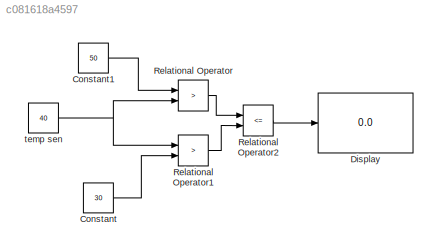
MODEL slx_c081618a4597
KIND model
CONFIG AbsTol = auto
CONFIG EnableMultiTasking = off
CONFIG FixedStep = auto
CONFIG MaxStep = auto
CONFIG MinStep = auto
CONFIG RelTol = 1e-3
CONFIG SampleTimeConstraint = Unconstrained
CONFIG SolverName = VariableStepAuto
CONFIG StartTime = 0.0
CONFIG StopTime = 10.0
BLOCK [Constant] Constant
  Value = 30
BLOCK [Constant] Constant1
  Value = 50
BLOCK [Display] Display
  Decimation = 1
  Ports = [1]
BLOCK [RelationalOperator] Relational Operator
  InputSameDT = off
  Operator = >
  OutDataTypeStr = boolean
  Ports = [2, 1]
  RndMeth = Simplest
BLOCK [RelationalOperator] Relational Operator1
  InputSameDT = off
  Operator = >
  OutDataTypeStr = boolean
  Ports = [2, 1]
  RndMeth = Simplest
BLOCK [RelationalOperator] Relational Operator2
  InputSameDT = off
  Operator = <=
  OutDataTypeStr = boolean
  Ports = [2, 1]
  RndMeth = Simplest
BLOCK [Constant] temp sen
  Value = 40
LINE Constant1:1 -> Relational Operator:1
LINE Constant:1 -> Relational Operator1:2
LINE Relational Operator1:1 -> Relational Operator2:2
LINE Relational Operator2:1 -> Display:1
LINE Relational Operator:1 -> Relational Operator2:1
NET temp sen:1 -> Relational Operator1:1, Relational Operator:2
note: NET lines group one-source signal fan-out (src -> all destinations, sorted); 1:1 wires keep LINE
